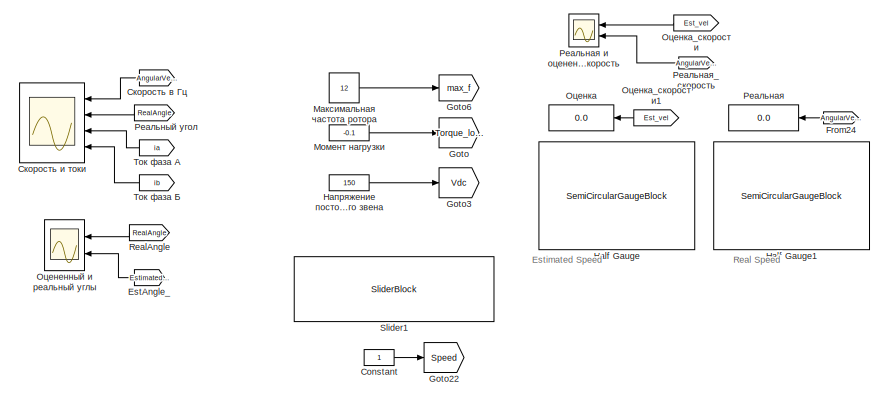
[diagram: root canvas - part 1/4, top left region]
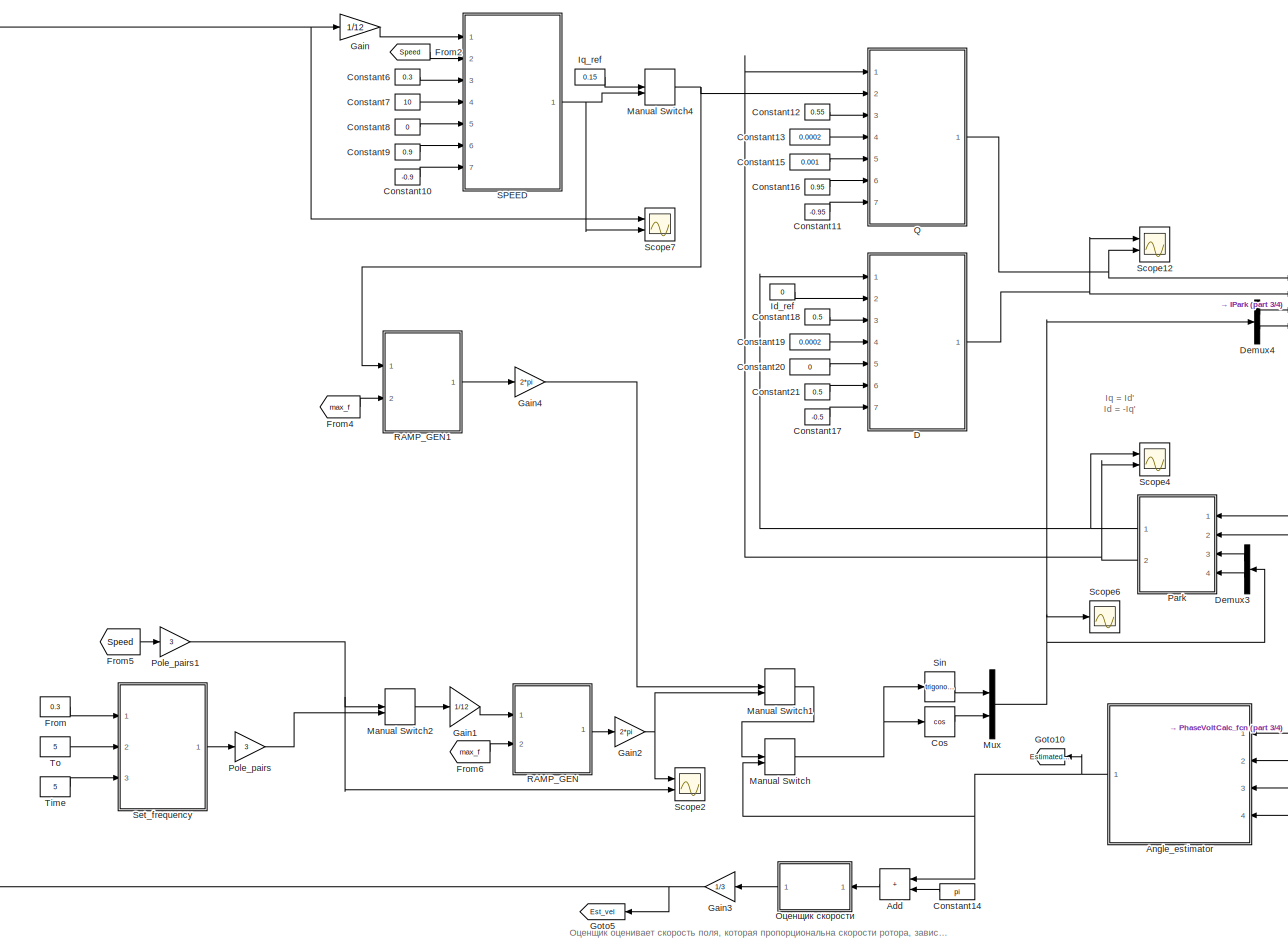
[diagram: root canvas - part 2/4, middle left region]
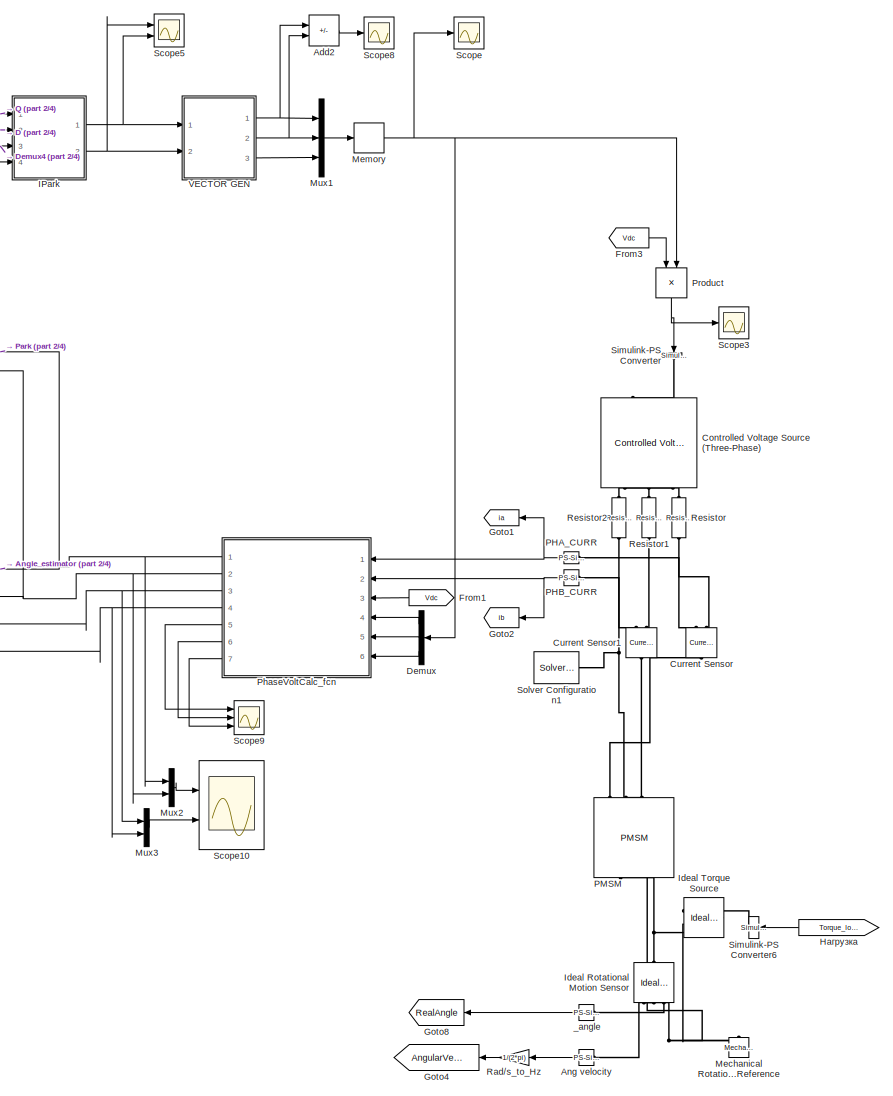
[diagram: root canvas - part 3/4, bottom right region]
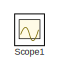
[diagram: root canvas - part 4/4, bottom right region]
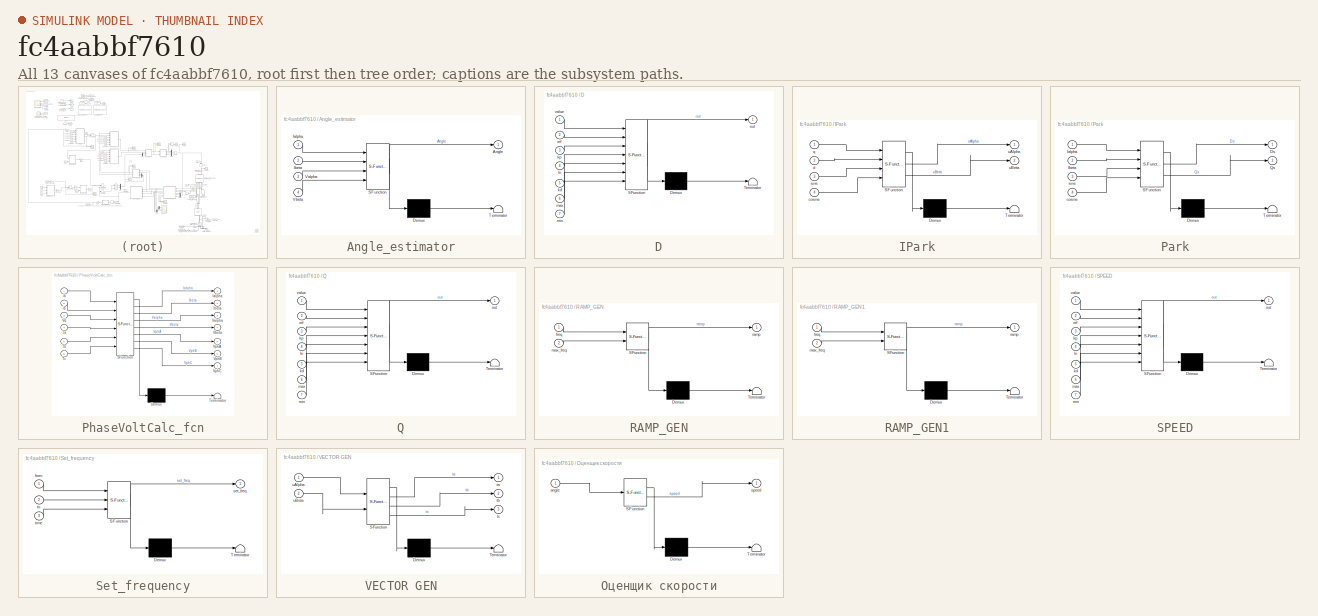
[diagram: thumbnail index - all 13 canvases of the model, root first then tree order]
MODEL slx_fc4aabbf7610
KIND model
CONFIG AbsTol = 1e-3
CONFIG EnableMultiTasking = off
CONFIG FixedStep = 2e-4
CONFIG MaxStep = auto
CONFIG MinStep = auto
CONFIG RelTol = 1e-3
CONFIG SampleTimeConstraint = Unconstrained
CONFIG Solver = ode1be
CONFIG SolverName = ode1be
CONFIG StartTime = 0.0
CONFIG StopTime = 12
BLOCK [Sum] Add
  IconShape = rectangular
  NameLocation = top
  Ports = [2, 1]
BLOCK [Sum] Add2
  IconShape = rectangular
  Inputs = +-
  Ports = [2, 1]
BLOCK [Reference] Ang velocity  REF=nesl_utility/PS-Simulink
Converter
  NameLocation = top
  Ports = [0, 1, 0, 0, 0, 1]
  SourceBlock = nesl_utility/PS-Simulink\nConverter
  SourceProductBaseCode = SS
  SourceType = PS-Simulink\nConverter
BLOCK [SubSystem] Angle_estimator
  ErrorFcn = Stateflow.Translate.translate
  NameLocation = top
  PermitHierarchicalResolution = ExplicitOnly
  Ports = [4, 1]
  RequestExecContextInheritance = off
  SFBlockType = MATLAB Function
  TreatAsAtomicUnit = on
BLOCK [Demux] Angle_estimator/ Demux 
  Outputs = 1
  Ports = [1, 1]
BLOCK [S-Function] Angle_estimator/ SFunction 
  EnableBusSupport = on
  FunctionName = sf_sfun
  PortCounts = [4 2]
  Ports = [4, 2]
  SFcnIsStateOwnerBlock = off
  SFunctionDeploymentMode = off
  Tag = Stateflow S-Function 13
BLOCK [Terminator] Angle_estimator/ Terminator 
BLOCK [Outport] Angle_estimator/Angle
BLOCK [Inport] Angle_estimator/Ialpha
BLOCK [Inport] Angle_estimator/Ibeta
  Port = 2
BLOCK [Inport] Angle_estimator/Valpha
  Port = 3
BLOCK [Inport] Angle_estimator/Vbeta
  Port = 4
BLOCK [Constant] Constant
BLOCK [Constant] Constant10
  Value = -0.9
BLOCK [Constant] Constant11
  Value = -0.95
BLOCK [Constant] Constant12
  Value = 0.55
BLOCK [Constant] Constant13
  Value = 0.0002
BLOCK [Constant] Constant14
  NameLocation = top
  Value = pi
BLOCK [Constant] Constant15
  Value = 0.001
BLOCK [Constant] Constant16
  Value = 0.95
BLOCK [Constant] Constant17
  Value = -0.5
BLOCK [Constant] Constant18
  Value = 0.5
BLOCK [Constant] Constant19
  Value = 0.0002
BLOCK [Constant] Constant20
  Value = 0
BLOCK [Constant] Constant21
  Value = 0.5
BLOCK [Constant] Constant6
  Value = 0.3
BLOCK [Constant] Constant7
  Value = 10
BLOCK [Constant] Constant8
  Value = 0
BLOCK [Constant] Constant9
  Value = 0.9
BLOCK [Reference] Controlled Voltage Source (Three-Phase)  REF=ee_lib/Sources/Controlled Voltage
Source
(Three-Phase)
  NameLocation = left
  Ports = [0, 0, 0, 0, 0, 2, 3]
  SourceBlock = ee_lib/Sources/Controlled Voltage\nSource\n(Three-Phase)
  SourceProductBaseCode = PS
  SourceType = Controlled Voltage\nSource\n(Three-Phase)
BLOCK [Trigonometry] Cos
  Operator = cos
  Ports = [1, 1]
BLOCK [Reference] Current Sensor  REF=fl_lib/Electrical/Electrical Sensors/Current Sensor
  NameLocation = right
  Ports = [0, 0, 0, 0, 0, 1, 2]
  SourceBlock = fl_lib/Electrical/Electrical Sensors/Current Sensor
  SourceProductBaseCode = MT,SS
  SourceType = Current Sensor
BLOCK [Reference] Current Sensor1  REF=fl_lib/Electrical/Electrical Sensors/Current Sensor
  NameLocation = right
  Ports = [0, 0, 0, 0, 0, 1, 2]
  SourceBlock = fl_lib/Electrical/Electrical Sensors/Current Sensor
  SourceProductBaseCode = MT,SS
  SourceType = Current Sensor
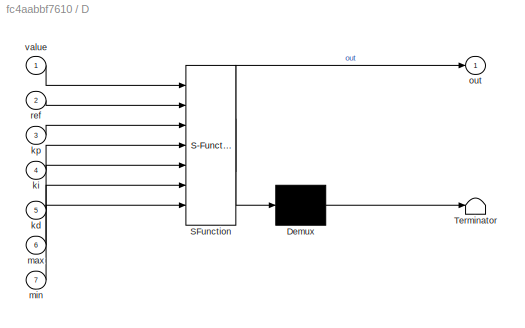
BLOCK [SubSystem] D
  ErrorFcn = Stateflow.Translate.translate
  PermitHierarchicalResolution = ExplicitOnly
  Ports = [7, 1]
  RequestExecContextInheritance = off
  SFBlockType = MATLAB Function
  TreatAsAtomicUnit = on
BLOCK [Demux] D/ Demux 
  Outputs = 1
  Ports = [1, 1]
BLOCK [S-Function] D/ SFunction 
  EnableBusSupport = on
  FunctionName = sf_sfun
  PortCounts = [7 2]
  Ports = [7, 2]
  SFcnIsStateOwnerBlock = off
  SFunctionDeploymentMode = off
  Tag = Stateflow S-Function 7
BLOCK [Terminator] D/ Terminator 
BLOCK [Inport] D/kd
  Port = 5
BLOCK [Inport] D/ki
  Port = 4
BLOCK [Inport] D/kp
  Port = 3
BLOCK [Inport] D/max
  Port = 6
BLOCK [Inport] D/min
  Port = 7
BLOCK [Outport] D/out
BLOCK [Inport] D/ref
  Port = 2
BLOCK [Inport] D/value
BLOCK [Demux] Demux
  NameLocation = top
  Outputs = 3
  Ports = [1, 3]
BLOCK [Demux] Demux3
  NameLocation = top
  Outputs = 2
  Ports = [1, 2]
BLOCK [Demux] Demux4
  Outputs = 2
  Ports = [1, 2]
BLOCK [From] EstAngle_
  GotoTag = EstimatedAngle
  NameLocation = top
BLOCK [Constant] From
  Value = 0.3
BLOCK [From] From1
  GotoTag = Vdc
  NameLocation = top
BLOCK [From] From2
  GotoTag = Speed
BLOCK [From] From24
  GotoTag = AngularVelocity
  NameLocation = top
BLOCK [From] From3
  GotoTag = Vdc
BLOCK [From] From4
  GotoTag = max_f
BLOCK [From] From5
  GotoTag = Speed
BLOCK [From] From6
  GotoTag = max_f
BLOCK [Gain] Gain
  Gain = 1/12
BLOCK [Gain] Gain1
  Gain = 1/12
BLOCK [Gain] Gain2
  Gain = 2*pi
BLOCK [Gain] Gain3
  Gain = 1/3
  NameLocation = top
BLOCK [Gain] Gain4
  Gain = 2*pi
BLOCK [Goto] Goto
  GotoTag = Torque_load
BLOCK [Goto] Goto1
  GotoTag = ia
  NameLocation = top
BLOCK [Goto] Goto10
  GotoTag = EstimatedAngle
BLOCK [Goto] Goto2
  GotoTag = ib
  NameLocation = top
BLOCK [Goto] Goto22
  GotoTag = Speed
BLOCK [Goto] Goto3
  GotoTag = Vdc
BLOCK [Goto] Goto4
  GotoTag = AngularVelocity
  NameLocation = top
BLOCK [Goto] Goto5
  GotoTag = Est_vel
BLOCK [Goto] Goto6
  GotoTag = max_f
BLOCK [Goto] Goto8
  GotoTag = RealAngle
  NameLocation = top
BLOCK [SemiCircularGaugeBlock] Half Gauge
  ScaleMax = 12
  ScaleMin = -12
BLOCK [SemiCircularGaugeBlock] Half Gauge1
  ScaleMax = 12
  ScaleMin = -12
BLOCK [SubSystem] IPark
  ErrorFcn = Stateflow.Translate.translate
  PermitHierarchicalResolution = ExplicitOnly
  Ports = [4, 2]
  RequestExecContextInheritance = off
  SFBlockType = MATLAB Function
  TreatAsAtomicUnit = on
BLOCK [Demux] IPark/ Demux 
  Outputs = 1
  Ports = [1, 1]
BLOCK [S-Function] IPark/ SFunction 
  EnableBusSupport = on
  FunctionName = sf_sfun
  PortCounts = [4 3]
  Ports = [4, 3]
  SFcnIsStateOwnerBlock = off
  SFunctionDeploymentMode = off
  Tag = Stateflow S-Function 15
BLOCK [Terminator] IPark/ Terminator 
BLOCK [Inport] IPark/cosine
  Port = 4
BLOCK [Inport] IPark/d
  Port = 2
BLOCK [Inport] IPark/q
BLOCK [Inport] IPark/sine
  Port = 3
BLOCK [Outport] IPark/uAlpha
BLOCK [Outport] IPark/uBeta
  Port = 2
BLOCK [Constant] Id_ref
  Value = 0
BLOCK [Reference] Ideal Rotational Motion Sensor  REF=fl_lib/Mechanical/Mechanical Sensors/Ideal Rotational
Motion Sensor
  NameLocation = left
  Ports = [0, 0, 0, 0, 0, 1, 3]
  SourceBlock = fl_lib/Mechanical/Mechanical Sensors/Ideal Rotational\nMotion Sensor
  SourceProductBaseCode = SS
  SourceType = Ideal Rotational\nMotion Sensor
BLOCK [Reference] Ideal Torque Source  REF=fl_lib/Mechanical/Mechanical Sources/Ideal Torque Source
  NameLocation = top
  Ports = [0, 0, 0, 0, 0, 1, 2]
  SourceBlock = fl_lib/Mechanical/Mechanical Sources/Ideal Torque Source
  SourceProductBaseCode = SS
  SourceType = Ideal Torque Source
BLOCK [Constant] Iq_ref
  Value = 0.15
BLOCK [ManualSwitch] Manual Switch
BLOCK [ManualSwitch] Manual Switch1
BLOCK [ManualSwitch] Manual Switch2
BLOCK [ManualSwitch] Manual Switch4
  CurrentSetting = 0
BLOCK [Reference] Mechanical Rotational Reference  REF=fl_lib/Mechanical/Rotational Elements/Mechanical
Rotational Reference
  NameLocation = right
  Ports = [0, 0, 0, 0, 0, 1]
  SourceBlock = fl_lib/Mechanical/Rotational Elements/Mechanical\nRotational Reference
  SourceProductBaseCode = SS
  SourceType = Mechanical\nRotational Reference
BLOCK [Memory] Memory
BLOCK [Mux] Mux
  DisplayOption = bar
  Inputs = 2
  Ports = [2, 1]
BLOCK [Mux] Mux1
  DisplayOption = bar
  Inputs = 3
  Ports = [3, 1]
BLOCK [Mux] Mux2
  DisplayOption = bar
  Inputs = 2
  Ports = [2, 1]
BLOCK [Mux] Mux3
  DisplayOption = bar
  Inputs = 2
  Ports = [2, 1]
BLOCK [Reference] PHA_CURR  REF=nesl_utility/PS-Simulink
Converter
  NameLocation = top
  Ports = [0, 1, 0, 0, 0, 1]
  SourceBlock = nesl_utility/PS-Simulink\nConverter
  SourceProductBaseCode = SS
  SourceType = PS-Simulink\nConverter
BLOCK [Reference] PHB_CURR  REF=nesl_utility/PS-Simulink
Converter
  NameLocation = top
  Ports = [0, 1, 0, 0, 0, 1]
  SourceBlock = nesl_utility/PS-Simulink\nConverter
  SourceProductBaseCode = SS
  SourceType = PS-Simulink\nConverter
BLOCK [Reference] PMSM  REF=ee_lib/Electromechanical/Permanent Magnet/PMSM
  NameLocation = left
  Ports = [0, 0, 0, 0, 0, 4, 2]
  SourceBlock = ee_lib/Electromechanical/Permanent Magnet/PMSM
  SourceProductBaseCode = PS
  SourceType = PMSM
BLOCK [SubSystem] Park
  ErrorFcn = Stateflow.Translate.translate
  NameLocation = top
  PermitHierarchicalResolution = ExplicitOnly
  Ports = [4, 2]
  RequestExecContextInheritance = off
  SFBlockType = MATLAB Function
  TreatAsAtomicUnit = on
BLOCK [Demux] Park/ Demux 
  Outputs = 1
  Ports = [1, 1]
BLOCK [S-Function] Park/ SFunction 
  EnableBusSupport = on
  FunctionName = sf_sfun
  PortCounts = [4 3]
  Ports = [4, 3]
  SFcnIsStateOwnerBlock = off
  SFunctionDeploymentMode = off
  Tag = Stateflow S-Function 4
BLOCK [Terminator] Park/ Terminator 
BLOCK [Outport] Park/Ds
BLOCK [Inport] Park/Ialpha
BLOCK [Inport] Park/Ibeta
  Port = 2
BLOCK [Outport] Park/Qs
  Port = 2
BLOCK [Inport] Park/cosine
  Port = 4
BLOCK [Inport] Park/sine
  Port = 3
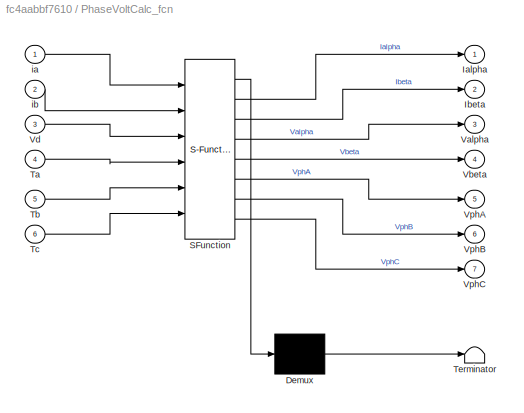
BLOCK [SubSystem] PhaseVoltCalc_fcn
  ErrorFcn = Stateflow.Translate.translate
  NameLocation = top
  PermitHierarchicalResolution = ExplicitOnly
  Ports = [6, 7]
  RequestExecContextInheritance = off
  SFBlockType = MATLAB Function
  TreatAsAtomicUnit = on
BLOCK [Demux] PhaseVoltCalc_fcn/ Demux 
  Outputs = 1
  Ports = [1, 1]
BLOCK [S-Function] PhaseVoltCalc_fcn/ SFunction 
  EnableBusSupport = on
  FunctionName = sf_sfun
  PortCounts = [6 8]
  Ports = [6, 8]
  SFcnIsStateOwnerBlock = off
  SFunctionDeploymentMode = off
  Tag = Stateflow S-Function 2
BLOCK [Terminator] PhaseVoltCalc_fcn/ Terminator 
BLOCK [Outport] PhaseVoltCalc_fcn/Ialpha
BLOCK [Outport] PhaseVoltCalc_fcn/Ibeta
  Port = 2
BLOCK [Inport] PhaseVoltCalc_fcn/Ta
  Port = 4
BLOCK [Inport] PhaseVoltCalc_fcn/Tb
  Port = 5
BLOCK [Inport] PhaseVoltCalc_fcn/Tc
  Port = 6
BLOCK [Outport] PhaseVoltCalc_fcn/Valpha
  Port = 3
BLOCK [Outport] PhaseVoltCalc_fcn/Vbeta
  Port = 4
BLOCK [Inport] PhaseVoltCalc_fcn/Vd
  Port = 3
BLOCK [Outport] PhaseVoltCalc_fcn/VphA
  Port = 5
BLOCK [Outport] PhaseVoltCalc_fcn/VphB
  Port = 6
BLOCK [Outport] PhaseVoltCalc_fcn/VphC
  Port = 7
BLOCK [Inport] PhaseVoltCalc_fcn/ia
BLOCK [Inport] PhaseVoltCalc_fcn/ib
  Port = 2
BLOCK [Gain] Pole_pairs
  Gain = 3
BLOCK [Gain] Pole_pairs1
  Gain = 3
BLOCK [Product] Product
  NameLocation = left
  Ports = [2, 1]
BLOCK [SubSystem] Q
  ErrorFcn = Stateflow.Translate.translate
  PermitHierarchicalResolution = ExplicitOnly
  Ports = [7, 1]
  RequestExecContextInheritance = off
  SFBlockType = MATLAB Function
  TreatAsAtomicUnit = on
BLOCK [Demux] Q/ Demux 
  Outputs = 1
  Ports = [1, 1]
BLOCK [S-Function] Q/ SFunction 
  EnableBusSupport = on
  FunctionName = sf_sfun
  PortCounts = [7 2]
  Ports = [7, 2]
  SFcnIsStateOwnerBlock = off
  SFunctionDeploymentMode = off
  Tag = Stateflow S-Function 3
BLOCK [Terminator] Q/ Terminator 
BLOCK [Inport] Q/kd
  Port = 5
BLOCK [Inport] Q/ki
  Port = 4
BLOCK [Inport] Q/kp
  Port = 3
BLOCK [Inport] Q/max
  Port = 6
BLOCK [Inport] Q/min
  Port = 7
BLOCK [Outport] Q/out
BLOCK [Inport] Q/ref
  Port = 2
BLOCK [Inport] Q/value
BLOCK [SubSystem] RAMP_GEN
  ErrorFcn = Stateflow.Translate.translate
  PermitHierarchicalResolution = ExplicitOnly
  Ports = [2, 1]
  RequestExecContextInheritance = off
  SFBlockType = MATLAB Function
  TreatAsAtomicUnit = on
BLOCK [Demux] RAMP_GEN/ Demux 
  Outputs = 1
  Ports = [1, 1]
BLOCK [S-Function] RAMP_GEN/ SFunction 
  EnableBusSupport = on
  FunctionName = sf_sfun
  PortCounts = [2 2]
  Ports = [2, 2]
  SFcnIsStateOwnerBlock = off
  SFunctionDeploymentMode = off
  Tag = Stateflow S-Function 5
BLOCK [Terminator] RAMP_GEN/ Terminator 
BLOCK [Inport] RAMP_GEN/freq
BLOCK [Inport] RAMP_GEN/max_freq
  Port = 2
BLOCK [Outport] RAMP_GEN/ramp
BLOCK [SubSystem] RAMP_GEN1
  ErrorFcn = Stateflow.Translate.translate
  PermitHierarchicalResolution = ExplicitOnly
  Ports = [2, 1]
  RequestExecContextInheritance = off
  SFBlockType = MATLAB Function
  TreatAsAtomicUnit = on
BLOCK [Demux] RAMP_GEN1/ Demux 
  Outputs = 1
  Ports = [1, 1]
BLOCK [S-Function] RAMP_GEN1/ SFunction 
  EnableBusSupport = on
  FunctionName = sf_sfun
  PortCounts = [2 2]
  Ports = [2, 2]
  SFcnIsStateOwnerBlock = off
  SFunctionDeploymentMode = off
  Tag = Stateflow S-Function 8
BLOCK [Terminator] RAMP_GEN1/ Terminator 
BLOCK [Inport] RAMP_GEN1/freq
BLOCK [Inport] RAMP_GEN1/max_freq
  Port = 2
BLOCK [Outport] RAMP_GEN1/ramp
BLOCK [Gain] Rad//s_to_Hz
  Gain = 1/(2*pi)
  NameLocation = top
BLOCK [From] RealAngle
  GotoTag = RealAngle
  NameLocation = top
BLOCK [Reference] Resistor  REF=fl_lib/Electrical/Electrical Elements/Resistor
  NameLocation = left
  Ports = [0, 0, 0, 0, 0, 1, 1]
  SourceBlock = fl_lib/Electrical/Electrical Elements/Resistor
  SourceProductBaseCode = SS
  SourceType = Resistor
BLOCK [Reference] Resistor1  REF=fl_lib/Electrical/Electrical Elements/Resistor
  NameLocation = left
  Ports = [0, 0, 0, 0, 0, 1, 1]
  SourceBlock = fl_lib/Electrical/Electrical Elements/Resistor
  SourceProductBaseCode = SS
  SourceType = Resistor
BLOCK [Reference] Resistor2  REF=fl_lib/Electrical/Electrical Elements/Resistor
  NameLocation = left
  Ports = [0, 0, 0, 0, 0, 1, 1]
  SourceBlock = fl_lib/Electrical/Electrical Elements/Resistor
  SourceProductBaseCode = SS
  SourceType = Resistor
BLOCK [SubSystem] SPEED
  ErrorFcn = Stateflow.Translate.translate
  PermitHierarchicalResolution = ExplicitOnly
  Ports = [7, 1]
  RequestExecContextInheritance = off
  SFBlockType = MATLAB Function
  TreatAsAtomicUnit = on
BLOCK [Demux] SPEED/ Demux 
  Outputs = 1
  Ports = [1, 1]
BLOCK [S-Function] SPEED/ SFunction 
  EnableBusSupport = on
  FunctionName = sf_sfun
  PortCounts = [7 2]
  Ports = [7, 2]
  SFcnIsStateOwnerBlock = off
  SFunctionDeploymentMode = off
  Tag = Stateflow S-Function 1
BLOCK [Terminator] SPEED/ Terminator 
BLOCK [Inport] SPEED/kd
  Port = 5
BLOCK [Inport] SPEED/ki
  Port = 4
BLOCK [Inport] SPEED/kp
  Port = 3
BLOCK [Inport] SPEED/max
  Port = 6
BLOCK [Inport] SPEED/min
  Port = 7
BLOCK [Outport] SPEED/out
BLOCK [Inport] SPEED/ref
  Port = 2
BLOCK [Inport] SPEED/value
BLOCK [Scope] Scope
  Floating = off
  NumInputPorts = 1
  Ports = [1]
  ScopeSpecificationString = Simulink.scopes.TimeScopeBlockCfg('CurrentConfiguration', extmgr.ConfigurationSet(extmgr.Configuration('Core','General UI',true),extmgr.Configuration('Core','Source UI',true),extmgr.Configuration('Sources','WiredSimulink',true,'DataLoggingVariableName','ScopeData1'),extmgr.Configuration('Visuals','Time Domain',true,'SerializedDisplays',{struct('MinYLimReal','-1.20628','MaxYLimReal','1.20628','YLab...<+1768ch>
BLOCK [Scope] Scope1
  Floating = off
  IOType = viewer
  NumInputPorts = 1
  Ports = []
  ScopeSpecificationString = Simulink.scopes.TimeScopeBlockCfg('CurrentConfiguration', extmgr.ConfigurationSet(extmgr.Configuration('Core','General UI',true),extmgr.Configuration('Core','Source UI',true),extmgr.Configuration('Sources','WiredSimulink',true,'DataLoggingVariableName','ScopeData1'),extmgr.Configuration('Visuals','Time Domain',true,'SerializedDisplays',{struct('MinYLimReal','0.027762','MaxYLimReal','0.027788','YLa...<+1446ch>
BLOCK [Scope] Scope10
  Floating = off
  NumInputPorts = 2
  Ports = [2]
  ScopeSpecificationString = Simulink.scopes.TimeScopeBlockCfg('CurrentConfiguration', extmgr.ConfigurationSet(extmgr.Configuration('Core','General UI',true),extmgr.Configuration('Core','Source UI',true),extmgr.Configuration('Sources','WiredSimulink',true,'DataLoggingVariableName','ScopeData10'),extmgr.Configuration('Visuals','Time Domain',true,'SerializedDisplays',{struct('MinYLimReal','-1.07716','MaxYLimReal','0.9031','YLab...<+2484ch>
BLOCK [Scope] Scope12
  Floating = off
  NumInputPorts = 2
  Ports = [2]
  ScopeSpecificationString = Simulink.scopes.TimeScopeBlockCfg('CurrentConfiguration', extmgr.ConfigurationSet(extmgr.Configuration('Core','General UI',true),extmgr.Configuration('Core','Source UI',true),extmgr.Configuration('Sources','WiredSimulink',true,'DataLoggingVariableName','ScopeData2'),extmgr.Configuration('Visuals','Time Domain',true,'SerializedDisplays',{struct('MinYLimReal','-1.16175','MaxYLimReal','0.95575','YLab...<+1725ch>
BLOCK [Scope] Scope2
  Floating = off
  NumInputPorts = 2
  Ports = [2]
  ScopeSpecificationString = Simulink.scopes.TimeScopeBlockCfg('CurrentConfiguration', extmgr.ConfigurationSet(extmgr.Configuration('Core','General UI',true),extmgr.Configuration('Core','Source UI',true),extmgr.Configuration('Sources','WiredSimulink',true,'DataLoggingVariableName','ScopeData2'),extmgr.Configuration('Visuals','Time Domain',true,'SerializedDisplays',{struct('MinYLimReal','-0.78511','MaxYLimReal','7.06653','YLab...<+2366ch>
BLOCK [Scope] Scope3
  Floating = off
  NumInputPorts = 1
  Ports = [1]
  ScopeSpecificationString = Simulink.scopes.TimeScopeBlockCfg('CurrentConfiguration', extmgr.ConfigurationSet(extmgr.Configuration('Core','General UI',true),extmgr.Configuration('Core','Source UI',true),extmgr.Configuration('Sources','WiredSimulink',true,'DataLoggingVariableName','ScopeData1'),extmgr.Configuration('Visuals','Time Domain',true,'SerializedDisplays',{struct('MinYLimReal','-20.30783','MaxYLimReal','20.30783','YL...<+1450ch>
BLOCK [Scope] Scope4
  Floating = off
  NumInputPorts = 2
  Ports = [2]
  ScopeSpecificationString = Simulink.scopes.TimeScopeBlockCfg('CurrentConfiguration', extmgr.ConfigurationSet(extmgr.Configuration('Core','General UI',true),extmgr.Configuration('Core','Source UI',true),extmgr.Configuration('Sources','WiredSimulink',true,'DataLoggingVariableName','ScopeData4'),extmgr.Configuration('Visuals','Time Domain',true,'SerializedDisplays',{struct('MinYLimReal','-0.78832','MaxYLimReal','1.20974','YLab...<+1428ch>
BLOCK [Scope] Scope5
  Floating = off
  NumInputPorts = 2
  Ports = [2]
  ScopeSpecificationString = Simulink.scopes.TimeScopeBlockCfg('CurrentConfiguration', extmgr.ConfigurationSet(extmgr.Configuration('Core','General UI',true),extmgr.Configuration('Core','Source UI',true),extmgr.Configuration('Sources','WiredSimulink',true,'DataLoggingVariableName','ScopeData5'),extmgr.Configuration('Visuals','Time Domain',true,'SerializedDisplays',{struct('MinYLimReal','-1.0262','MaxYLimReal','1.1026','YLabel...<+1784ch>
BLOCK [Scope] Scope6
  Floating = off
  NumInputPorts = 1
  Ports = [1]
  ScopeSpecificationString = Simulink.scopes.TimeScopeBlockCfg('CurrentConfiguration', extmgr.ConfigurationSet(extmgr.Configuration('Core','General UI',true),extmgr.Configuration('Core','Source UI',true),extmgr.Configuration('Sources','WiredSimulink',true,'DataLoggingVariableName','ScopeData6'),extmgr.Configuration('Visuals','Time Domain',true,'SerializedDisplays',{struct('MinYLimReal','-1.25','MaxYLimReal','1.25','YLabelReal...<+1421ch>
BLOCK [Scope] Scope7
  Floating = off
  NumInputPorts = 2
  Ports = [2]
  ScopeSpecificationString = Simulink.scopes.TimeScopeBlockCfg('CurrentConfiguration', extmgr.ConfigurationSet(extmgr.Configuration('Core','General UI',true),extmgr.Configuration('Core','Source UI',true),extmgr.Configuration('Sources','WiredSimulink',true,'DataLoggingVariableName','ScopeData1'),extmgr.Configuration('Visuals','Time Domain',true,'SerializedDisplays',{struct('MinYLimReal','-209.00562','MaxYLimReal','1872.05058',...<+1417ch>
BLOCK [Scope] Scope8
  Floating = off
  NumInputPorts = 1
  Ports = [1]
  ScopeSpecificationString = Simulink.scopes.TimeScopeBlockCfg('CurrentConfiguration', extmgr.ConfigurationSet(extmgr.Configuration('Core','General UI',true),extmgr.Configuration('Core','Source UI',true),extmgr.Configuration('Sources','WiredSimulink',true,'DataLoggingVariableName','ScopeData8'),extmgr.Configuration('Visuals','Time Domain',true,'SerializedDisplays',{struct('MinYLimReal','-0.18952','MaxYLimReal','0.19389','YLab...<+1666ch>
BLOCK [Scope] Scope9
  Floating = off
  NumInputPorts = 3
  Ports = [3]
  ScopeSpecificationString = Simulink.scopes.TimeScopeBlockCfg('CurrentConfiguration', extmgr.ConfigurationSet(extmgr.Configuration('Core','General UI',true),extmgr.Configuration('Core','Source UI',true),extmgr.Configuration('Sources','WiredSimulink',true,'DataLoggingVariableName','ScopeData9'),extmgr.Configuration('Visuals','Time Domain',true,'SerializedDisplays',{struct('MinYLimReal','-0.13677','MaxYLimReal','0.13775','YLab...<+1792ch>
BLOCK [SubSystem] Set_frequency
  ErrorFcn = Stateflow.Translate.translate
  PermitHierarchicalResolution = ExplicitOnly
  Ports = [3, 1]
  RequestExecContextInheritance = off
  SFBlockType = MATLAB Function
  TreatAsAtomicUnit = on
BLOCK [Demux] Set_frequency/ Demux 
  Outputs = 1
  Ports = [1, 1]
BLOCK [S-Function] Set_frequency/ SFunction 
  EnableBusSupport = on
  FunctionName = sf_sfun
  PortCounts = [3 2]
  Ports = [3, 2]
  SFcnIsStateOwnerBlock = off
  SFunctionDeploymentMode = off
  Tag = Stateflow S-Function 6
BLOCK [Terminator] Set_frequency/ Terminator 
BLOCK [Inport] Set_frequency/from
BLOCK [Outport] Set_frequency/set_freq
BLOCK [Inport] Set_frequency/time
  Port = 3
BLOCK [Inport] Set_frequency/to
  Port = 2
BLOCK [Reference] Simulink-PS Converter  REF=nesl_utility/Simulink-PS
Converter
  NameLocation = top
  Ports = [1, 0, 0, 0, 0, 0, 1]
  SourceBlock = nesl_utility/Simulink-PS\nConverter
  SourceProductBaseCode = SS
  SourceType = Simulink-PS\nConverter
BLOCK [Reference] Simulink-PS Converter6  REF=nesl_utility/Simulink-PS
Converter
  NameLocation = top
  Ports = [1, 0, 0, 0, 0, 0, 1]
  SourceBlock = nesl_utility/Simulink-PS\nConverter
  SourceProductBaseCode = SS
  SourceType = Simulink-PS\nConverter
BLOCK [Trigonometry] Sin
  Ports = [1, 1]
BLOCK [SliderBlock] Slider1
  ScaleMax = 12
BLOCK [Reference] Solver Configuration1  REF=nesl_utility/Solver
Configuration
  Ports = [0, 0, 0, 0, 0, 0, 1]
  SourceBlock = nesl_utility/Solver\nConfiguration
  SourceProductBaseCode = SS
  SourceType = Solver\nConfiguration
BLOCK [Constant] Time
  Value = 5
BLOCK [Constant] To
  Value = 5
BLOCK [SubSystem] VECTOR GEN
  ErrorFcn = Stateflow.Translate.translate
  PermitHierarchicalResolution = ExplicitOnly
  Ports = [2, 3]
  RequestExecContextInheritance = off
  SFBlockType = MATLAB Function
  TreatAsAtomicUnit = on
BLOCK [Demux] VECTOR GEN/ Demux 
  Outputs = 1
  Ports = [1, 1]
BLOCK [S-Function] VECTOR GEN/ SFunction 
  EnableBusSupport = on
  FunctionName = sf_sfun
  PortCounts = [2 4]
  Ports = [2, 4]
  SFcnIsStateOwnerBlock = off
  SFunctionDeploymentMode = off
  Tag = Stateflow S-Function 16
BLOCK [Terminator] VECTOR GEN/ Terminator 
BLOCK [Outport] VECTOR GEN/ta
BLOCK [Outport] VECTOR GEN/tb
  Port = 2
BLOCK [Outport] VECTOR GEN/tc
  Port = 3
BLOCK [Inport] VECTOR GEN/uAlpha
BLOCK [Inport] VECTOR GEN/uBeta
  Port = 2
BLOCK [Reference] _angle  REF=nesl_utility/PS-Simulink
Converter
  NameLocation = top
  Ports = [0, 1, 0, 0, 0, 1]
  SourceBlock = nesl_utility/PS-Simulink\nConverter
  SourceProductBaseCode = SS
  SourceType = PS-Simulink\nConverter
BLOCK [Constant] Максимальная частота ротора
  Value = 12
BLOCK [Constant] Момент нагрузки
  Value = -0.1
BLOCK [From] Нагрузка
  GotoTag = Torque_load
  NameLocation = top
BLOCK [Constant] Напряжение постоянного звена
  SampleTime = -1
  Value = 150
BLOCK [Scope] Оцененный и реальный углы
  Floating = off
  NameLocation = top
  NumInputPorts = 2
  Ports = [2]
  ScopeSpecificationString = Simulink.scopes.TimeScopeBlockCfg('CurrentConfiguration', extmgr.ConfigurationSet(extmgr.Configuration('Core','General UI',true),extmgr.Configuration('Core','Source UI',true),extmgr.Configuration('Sources','WiredSimulink',true,'DataLoggingVariableName','ScopeData4'),extmgr.Configuration('Visuals','Time Domain',true,'SerializedDisplays',{struct('MinYLimReal','-0.7854','MaxYLimReal','7.06858','YLabe...<+2361ch>
BLOCK [Display] Оценка
  Decimation = 3
  NameLocation = top
  Ports = [1]
BLOCK [From] Оценка_скорости
  GotoTag = Est_vel
BLOCK [From] Оценка_скорости1
  GotoTag = Est_vel
BLOCK [SubSystem] Оценщик скорости
  ErrorFcn = Stateflow.Translate.translate
  NameLocation = top
  PermitHierarchicalResolution = ExplicitOnly
  Ports = [1, 1]
  RequestExecContextInheritance = off
  SFBlockType = MATLAB Function
  TreatAsAtomicUnit = on
BLOCK [Demux] Оценщик скорости/ Demux 
  Outputs = 1
  Ports = [1, 1]
BLOCK [S-Function] Оценщик скорости/ SFunction 
  EnableBusSupport = on
  FunctionName = sf_sfun
  PortCounts = [1 2]
  Ports = [1, 2]
  SFcnIsStateOwnerBlock = off
  SFunctionDeploymentMode = off
  Tag = Stateflow S-Function 12
BLOCK [Terminator] Оценщик скорости/ Terminator 
BLOCK [Inport] Оценщик скорости/angle
BLOCK [Outport] Оценщик скорости/speed
BLOCK [Display] Реальная
  Decimation = 3
  NameLocation = top
  Ports = [1]
BLOCK [Scope] Реальная и оцененная скорость
  Floating = off
  NameLocation = top
  NumInputPorts = 2
  Ports = [2]
  ScopeSpecificationString = Simulink.scopes.TimeScopeBlockCfg('CurrentConfiguration', extmgr.ConfigurationSet(extmgr.Configuration('Core','General UI',true),extmgr.Configuration('Core','Source UI',true),extmgr.Configuration('Sources','WiredSimulink',true,'DataLoggingVariableName','ScopeData1'),extmgr.Configuration('Visuals','Time Domain',true,'SerializedDisplays',{struct('MinYLimReal','-215.96713','MaxYLimReal','1872.82409',...<+1494ch>
BLOCK [From] Реальная_скорость
  GotoTag = AngularVelocity
BLOCK [From] Реальный угол
  GotoTag = RealAngle
  NameLocation = top
BLOCK [From] Скорость в Гц
  GotoTag = AngularVelocity
  NameLocation = top
BLOCK [Scope] Скорость и токи
  Floating = off
  NameLocation = top
  NumInputPorts = 4
  Ports = [4]
  ScopeSpecificationString = Simulink.scopes.TimeScopeBlockCfg('CurrentConfiguration', extmgr.ConfigurationSet(extmgr.Configuration('Core','General UI',true),extmgr.Configuration('Core','Source UI',true),extmgr.Configuration('Sources','WiredSimulink',true,'DataLoggingVariableName','ScopeData2'),extmgr.Configuration('Visuals','Time Domain',true,'SerializedDisplays',{struct('MinYLimReal','-9.00376','MaxYLimReal','10.13133','YLa...<+3071ch>
BLOCK [From] Ток фаза А
  GotoTag = ia
  NameLocation = top
BLOCK [From] Ток фаза Б
  GotoTag = ib
  NameLocation = top
ANNOTATION (root): Estimated Speed
ANNOTATION (root): Iq = Id' Id = -Iq'
ANNOTATION (root): Real Speed
ANNOTATION (root): Оценщик оценивает скорость поля, которая пропорциональна скорости ротора, зависимо от числа полюсов двигателя
LINE Add2:1 -> Scope8:1
LINE Add:1 -> Оценщик скорости:1
LINE Ang velocity:1 -> Rad//s_to_Hz:1
NET Angle_estimator:1 -> Add:1, Goto10:1, Manual Switch:2
LINE Constant10:1 -> SPEED:7
LINE Constant11:1 -> Q:7
LINE Constant12:1 -> Q:3
LINE Constant13:1 -> Q:4
LINE Constant14:1 -> Add:2
LINE Constant15:1 -> Q:5
LINE Constant16:1 -> Q:6
LINE Constant17:1 -> D:7
LINE Constant18:1 -> D:3
LINE Constant19:1 -> D:4
LINE Constant20:1 -> D:5
LINE Constant21:1 -> D:6
LINE Constant6:1 -> SPEED:3
LINE Constant7:1 -> SPEED:4
LINE Constant8:1 -> SPEED:5
LINE Constant9:1 -> SPEED:6
LINE Constant:1 -> Goto22:1
LINE Cos:1 -> Mux:2
NET D:1 -> IPark:2, Scope12:1
LINE Demux3:1 -> Park:3
LINE Demux3:2 -> Park:4
LINE Demux4:1 -> IPark:3
LINE Demux4:2 -> IPark:4
LINE Demux:1 -> PhaseVoltCalc_fcn:4
LINE Demux:2 -> PhaseVoltCalc_fcn:5
LINE Demux:3 -> PhaseVoltCalc_fcn:6
LINE EstAngle_:1 -> Оцененный и реальный углы:2
LINE From1:1 -> PhaseVoltCalc_fcn:3
LINE From24:1 -> Реальная:1
LINE From2:1 -> SPEED:2
LINE From3:1 -> Product:1
LINE From4:1 -> RAMP_GEN1:2
LINE From5:1 -> Pole_pairs1:1
LINE From6:1 -> RAMP_GEN:2
LINE From:1 -> Set_frequency:1
LINE Gain1:1 -> RAMP_GEN:1
NET Gain2:1 -> Manual Switch1:2, Scope2:1
NET Gain3:1 -> Gain:1, Goto5:1, Scope7:1
LINE Gain4:1 -> Manual Switch1:1
LINE Gain:1 -> SPEED:1
NET IPark:1 -> Scope5:2, VECTOR GEN:1
NET IPark:2 -> Scope5:1, VECTOR GEN:2
LINE Id_ref:1 -> D:2
LINE Iq_ref:1 -> Manual Switch4:1
LINE Manual Switch1:1 -> Manual Switch:1
LINE Manual Switch2:1 -> Gain1:1
NET Manual Switch4:1 -> Q:2, RAMP_GEN1:1
NET Manual Switch:1 -> Cos:1, Sin:1
NET Memory:1 -> Demux:1, Product:2, Scope:1
LINE Mux1:1 -> Memory:1
LINE Mux2:1 -> Scope10:1
LINE Mux3:1 -> Scope10:2
NET Mux:1 -> Demux3:1, Demux4:1, Scope6:1
NET PHA_CURR:1 -> Goto1:1, PhaseVoltCalc_fcn:1
NET PHB_CURR:1 -> Goto2:1, PhaseVoltCalc_fcn:2
NET Park:1 -> D:1, Scope4:1
NET Park:2 -> Q:1, Scope4:2
NET PhaseVoltCalc_fcn:1 -> Angle_estimator:1, Mux2:1, Park:1
NET PhaseVoltCalc_fcn:2 -> Angle_estimator:2, Mux2:2, Park:2
NET PhaseVoltCalc_fcn:3 -> Angle_estimator:3, Mux3:1
NET PhaseVoltCalc_fcn:4 -> Angle_estimator:4, Mux3:2
LINE PhaseVoltCalc_fcn:5 -> Scope9:1
LINE PhaseVoltCalc_fcn:6 -> Scope9:2
LINE PhaseVoltCalc_fcn:7 -> Scope9:3
NET Pole_pairs1:1 -> Manual Switch2:1, Scope2:2
LINE Pole_pairs:1 -> Manual Switch2:2
NET Product:1 -> Scope3:1, Simulink-PS Converter:1
NET Q:1 -> IPark:1, Scope12:2
LINE RAMP_GEN1:1 -> Gain4:1
LINE RAMP_GEN:1 -> Gain2:1
LINE Rad//s_to_Hz:1 -> Goto4:1
LINE RealAngle:1 -> Оцененный и реальный углы:1
NET SPEED:1 -> Manual Switch4:2, Scope7:2
LINE Set_frequency:1 -> Pole_pairs:1
LINE Sin:1 -> Mux:1
LINE Time:1 -> Set_frequency:3
LINE To:1 -> Set_frequency:2
NET VECTOR GEN:1 -> Add2:1, Mux1:1
NET VECTOR GEN:2 -> Add2:2, Mux1:2
LINE VECTOR GEN:3 -> Mux1:3
LINE _angle:1 -> Goto8:1
LINE Максимальная частота ротора:1 -> Goto6:1
LINE Момент нагрузки:1 -> Goto:1
LINE Нагрузка:1 -> Simulink-PS Converter6:1
LINE Напряжение постоянного звена:1 -> Goto3:1
LINE Оценка_скорости1:1 -> Оценка:1
LINE Оценка_скорости:1 -> Реальная и оцененная скорость:1
LINE Оценщик скорости:1 -> Gain3:1
LINE Реальная_скорость:1 -> Реальная и оцененная скорость:2
LINE Реальный угол:1 -> Скорость и токи:2
LINE Скорость в Гц:1 -> Скорость и токи:1
LINE Ток фаза А:1 -> Скорость и токи:3
LINE Ток фаза Б:1 -> Скорость и токи:4
PLINE Ang velocity:LConn1 -- Ideal Rotational Motion Sensor:RConn2
PLINE Controlled Voltage Source (Three-Phase):LConn1 -- Simulink-PS Converter:RConn1
PLINE Controlled Voltage Source (Three-Phase):RConn1 -- Resistor:LConn1
PLINE Controlled Voltage Source (Three-Phase):RConn2 -- Resistor1:LConn1
PLINE Controlled Voltage Source (Three-Phase):RConn3 -- Resistor2:LConn1
PLINE Current Sensor1:LConn1 -- PMSM:LConn2
PLINE Current Sensor1:RConn1 -- PHB_CURR:LConn1
PLINE Current Sensor1:RConn2 -- Resistor1:RConn1
PLINE Current Sensor:LConn1 -- PMSM:LConn1
PLINE Current Sensor:RConn1 -- PHA_CURR:LConn1
PLINE Current Sensor:RConn2 -- Resistor:RConn1
PNET net1: Ideal Rotational Motion Sensor:LConn1 -- Ideal Torque Source:LConn1 -- PMSM:RConn1
PNET net2: Ideal Rotational Motion Sensor:RConn1 -- Ideal Torque Source:RConn2 -- Mechanical Rotational Reference:LConn1 -- PMSM:RConn2
PLINE Ideal Rotational Motion Sensor:RConn3 -- _angle:LConn1
PLINE Ideal Torque Source:RConn1 -- Simulink-PS Converter6:RConn1
PNET net3: PMSM:LConn3 -- Resistor2:RConn1 -- Solver Configuration1:RConn1
note: NET lines group one-source signal fan-out (src -> all destinations, sorted); 1:1 wires keep LINE; PNET lines group multi-terminal physical nets as a canonical sorted terminal list (undirected conserving connections); 2-terminal nets keep the pairwise PLINE form
CHART RAMP_GEN1 states=1 transitions=1
  STATE_LABEL 'eML_blk_kernel()'
  STATE_LABEL 'SCRIPT:\nfunction ramp = Ramp(freq, max_freq)\n\npersistent angle;\npersistent prevAngle;\n\nif isempty(angle)\n    angle = 0;\nend\n\nif isempty(prevAngle)\n    prevAngle = 0;\nend\n\nstep = freq * max_freq * 2e-4;\nangle = angle + step;\n\nif angle >= 1\n    angle = angle - 1;\nend\n\nramp = angle;\n'
CHART Оценщик скорости states=1 transitions=1
  STATE_LABEL 'eML_blk_kernel()'
  STATE_LABEL 'SCRIPT:\nfunction speed = spdest(angle)\n\npersistent prevAngle;\npersistent prevSpeed;\npersistent p_speed;\npersistent counter;\npersistent overall;\n\nif isempty(overall)\n    overall = 0;\nend\n\nif isempty(counter)\n    counter = 0;\nend\n\nif isempty(p_speed)\n    p_speed = 0;\nend\n\nif isempty(prevAngle)\n    prevAngle = 0;\nend\n\nif isempty(prevSpeed)\n    prevSpeed = 0;\nend\n\n\nif angle < prevAngle\n    temp = (2 *...<+370ch>'
CHART Angle_estimator states=1 transitions=1
  STATE_LABEL 'eML_blk_kernel()'
  STATE_LABEL 'SCRIPT:\nfunction Angle = AngleEstimator(Ialpha, Ibeta, Valpha, Vbeta)\n\npersistent prevIalpha;\npersistent prevIbeta;\npersistent L0;\npersistent L1;\npersistent angle;\n\nif isempty(prevIalpha)\n    prevIalpha = 0;\nend\n\nif isempty(prevIbeta)\n    prevIbeta = 0;\nend\n\nif isempty(L0)\n    L0 = (5e-3 + 10e-3) / 2;\nend\n\nif isempty(L1)\n    L1 = (10e-3 - 5e-3) / 2;\nend\n\nif isempty(angle)\n    angle = 0;\nend\n\nEalph...<+264ch>'
CHART IPark states=1 transitions=1
  STATE_LABEL 'eML_blk_kernel()'
  STATE_LABEL 'SCRIPT:\nfunction [uAlpha, uBeta]= IPark(q, d, sine, cosine)\n\n%преобразование увеличивает амплитуду на 2/sqrt(3), делю обратно\n\n% uAlpha = (d * cosine - q * sine) / (2 / sqrt(3));\n% uBeta = (q * cosine + d * sine) / (2 / sqrt(3));\n\nuAlpha = d * cosine - q * sine;\nuBeta = q * cosine + d * sine;\n\n'
CHART VECTOR GEN states=1 transitions=1
  STATE_LABEL 'eML_blk_kernel()'
  STATE_LABEL "SCRIPT:\nfunction [ta, tb, tc] = svgen(uAlpha, uBeta)\n\n%здесь делают обратное преобразование кларк, но оно не такое как в книге\n%калачева, если что взять оттуда и проверить\n%попробовать код оттуда'\n\ntmp1 = uBeta;\ntmp2 = uBeta * 0.5 + uAlpha * (sqrt(3) / 2);\ntmp3 = tmp2 - tmp1;\n\nsector = 3;\nif tmp2 > 0\n    sector = sector - 1;\nend\n\nif tmp3 > 0\n    sector = sector - 1;\nend\n\nif tmp1 < 0\n    sector = 7...<+318ch>"
CHART SPEED states=1 transitions=1
  STATE_LABEL 'eML_blk_kernel()'
  STATE_LABEL 'SCRIPT:\nfunction out  = PI(value, ref, kp, ki, kd, max, min)\n\npersistent dT;\npersistent prevIntegral;\npersistent prevError;\n\nif isempty(dT)\n    dT = 2e-4;\nend\n\nif isempty(prevIntegral)\n    prevIntegral = 0;\nend\n\nif isempty(prevError)\n    prevError = 0;\nend\n\nerror = ref - value;\n%пока без предотвращения интегрального насыщения, но она тут реально нужна\nintegralTerm = prevIntegral + error * dT;\nprev...<+277ch>'  <repeated x3 — deduplicated; at blocks: SPEED, Q, D>
CHART PhaseVoltCalc_fcn states=1 transitions=1
  STATE_LABEL 'eML_blk_kernel()'
  STATE_LABEL 'SCRIPT:\nfunction [Ialpha, Ibeta, Valpha, Vbeta, VphA, VphB, VphC] = PhaseVoltCalc(ia, ib, Vd, Ta, Tb, Tc)\n\npersistent out_of_phase;\n\nif isempty(out_of_phase)\n    out_of_phase = 0;\nend\n\n%clarke\nIalpha = ia / 80;\nIbeta = (2 * ib / 80 + ia / 80) / sqrt(3);\n\ntemp = (Vd / 150) / 3;\nVphA = temp * (2 * Ta - Tb - Tc);\nVphB = temp * (2 * Tb - Ta - Tc);\nVphC = temp * (2 * Tc - Ta - Tb);\n\n%здесь в системе ал...<+209ch>'
CHART Q states=1 transitions=1
  STATE_LABEL 'eML_blk_kernel()'
CHART Park states=1 transitions=1
  STATE_LABEL 'eML_blk_kernel()'
  STATE_LABEL 'SCRIPT:\nfunction [Ds, Qs] = Park(Ialpha, Ibeta, sine, cosine)\n\npersistent prevId;\npersistent prevIq;\n\nif isempty(prevId)\n    prevId = 0;\nend\n\nif isempty(prevIq)\n    prevIq = 0;\nend\n% \n% Id = 0.4 * (Ialpha * cos(angle) + Ibeta * sin(angle)) + 0.6 * prevId;\n% Iq = 0.4 * (Ibeta * cos(angle) - Ialpha * sin(angle)) + 0.6 * prevIq;\n% prevId = Id;\n% prevIq = Iq;\n\nDs = Ialpha * cosine + Ibeta * sine; \nQs ...<+33ch>'
CHART RAMP_GEN states=1 transitions=1
  STATE_LABEL 'eML_blk_kernel()'
  STATE_LABEL 'SCRIPT:\nfunction ramp = Ramp(freq, max_freq)\n\npersistent angle;\npersistent prevAngle;\n\nif isempty(angle)\n    angle = 0;\nend\n\nif isempty(prevAngle)\n    prevAngle = 0;\nend\n\nstep = freq * max_freq * 2e-4;\nangle = angle + step;\n\nif angle >= 1\n    angle = angle - 1;\nend\n\nramp = angle;\n'
CHART Set_frequency states=1 transitions=1
  STATE_LABEL 'eML_blk_kernel()'
  STATE_LABEL 'SCRIPT:\nfunction set_freq = sf(from, to, time)\n\npersistent freq;\npersistent en;\n\nif isempty(freq)\n    freq = 0; \nend\n\nif isempty(en)\n    en = 1;\nend\n\nif en == 1\n    step = (to - from) / (time * ((2e-4) ^ (-1)));\n    freq = freq + step;\n    if(abs(freq - to) <= abs(step + 0.05 * step))\n        set_freq = to;\n        en = 0;\n    else\n        set_freq = freq;\n    end\nelse\n    set_freq = to;\nend\n\n\n'
CHART D states=1 transitions=1
  STATE_LABEL 'eML_blk_kernel()'
CHART  states=0 transitions=0
CHART  states=0 transitions=0
CHART  states=0 transitions=0
CHART  states=0 transitions=0
CHART  states=0 transitions=0
CHART  states=0 transitions=0
CHART  states=0 transitions=0
CHART  states=0 transitions=0
CHART  states=0 transitions=0
CHART  states=0 transitions=0
CHART  states=0 transitions=0
CHART  states=0 transitions=0
